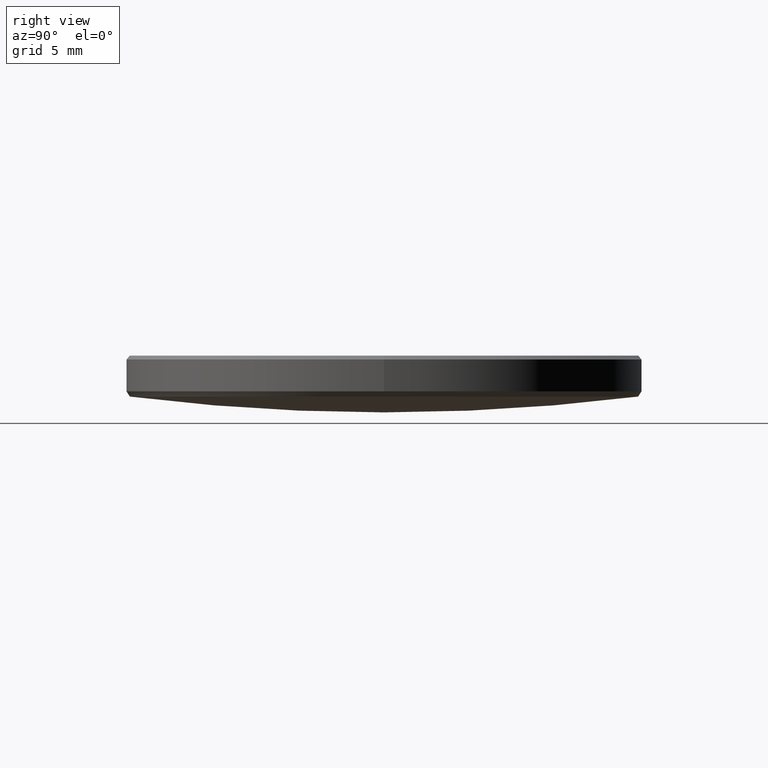
[diagram: clean part render]
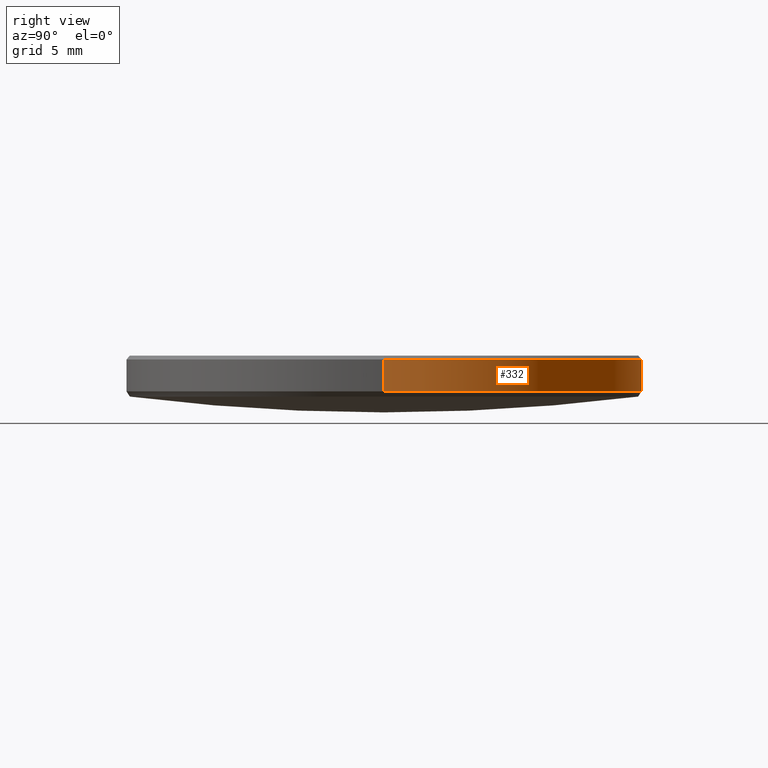
[diagram: same view with one face highlighted and labeled with its STEP entity id]
A machine part, right view. The second image highlights one B-rep face of the part: STEP entity #332.
In plain terms, the highlighted cylindrical surface (partial cylindrical patch) has radius 12.7 mm, axis along (-0, -0, -1).
Its self-contained STEP definition (entity closure, byte-faithful):
#1 = VECTOR ( 'NONE', #92, 1000.000000000000000 ) ;
#14 = FACE_OUTER_BOUND ( 'NONE', #113, .T. ) ;
#18 = EDGE_CURVE ( 'NONE', #253, #30, #66, .T. ) ;
#30 = VERTEX_POINT ( 'NONE', #319 ) ;
#54 = EDGE_CURVE ( 'NONE', #58, #191, #244, .T. ) ;
#58 = VERTEX_POINT ( 'NONE', #100 ) ;
#66 = LINE ( 'NONE', #267, #1 ) ;
#72 = CIRCLE ( 'NONE', #292, 12.69999999999999929 ) ;
#73 = DIRECTION ( 'NONE',  ( -0.000000000000000000, -0.000000000000000000, -1.000000000000000000 ) ) ;
#87 = CARTESIAN_POINT ( 'NONE',  ( -12.69999999999999929, 0.000000000000000000, 4.230902662384877999 ) ) ;
#90 = DIRECTION ( 'NONE',  ( 1.000000000000000000, 0.000000000000000000, 0.000000000000000000 ) ) ;
#92 = DIRECTION ( 'NONE',  ( -0.000000000000000000, -0.000000000000000000, -1.000000000000000000 ) ) ;
#100 = CARTESIAN_POINT ( 'NONE',  ( -12.69999999999999929, 0.000000000000000000, 5.800000000000027356 ) ) ;
#103 = CARTESIAN_POINT ( 'NONE',  ( -12.69999999999999929, 0.000000000000000000, 10.00000000000000000 ) ) ;
#113 = EDGE_LOOP ( 'NONE', ( #263, #159, #230, #317 ) ) ;
#116 = DIRECTION ( 'NONE',  ( -0.000000000000000000, -0.000000000000000000, 1.000000000000000000 ) ) ;
#129 = CIRCLE ( 'NONE', #314, 12.69999999999999929 ) ;
#136 = CARTESIAN_POINT ( 'NONE',  ( 0.000000000000000000, 0.000000000000000000, 4.230902662384877999 ) ) ;
#148 = CARTESIAN_POINT ( 'NONE',  ( 0.000000000000000000, 0.000000000000000000, 10.00000000000000000 ) ) ;
#159 = ORIENTED_EDGE ( 'NONE', *, *, #18, .T. ) ;
#191 = VERTEX_POINT ( 'NONE', #87 ) ;
#196 = DIRECTION ( 'NONE',  ( -0.000000000000000000, -0.000000000000000000, -1.000000000000000000 ) ) ;
#227 = EDGE_CURVE ( 'NONE', #58, #253, #129, .T. ) ;
#230 = ORIENTED_EDGE ( 'NONE', *, *, #280, .T. ) ;
#234 = DIRECTION ( 'NONE',  ( -1.000000000000000000, 0.000000000000000000, 0.000000000000000000 ) ) ;
#237 = CARTESIAN_POINT ( 'NONE',  ( 12.69999999999999929, 1.555301434917138433E-15, 5.800000000000027356 ) ) ;
#244 = LINE ( 'NONE', #103, #283 ) ;
#248 = DIRECTION ( 'NONE',  ( -1.000000000000000000, 0.000000000000000000, 0.000000000000000000 ) ) ;
#253 = VERTEX_POINT ( 'NONE', #237 ) ;
#263 = ORIENTED_EDGE ( 'NONE', *, *, #227, .T. ) ;
#267 = CARTESIAN_POINT ( 'NONE',  ( 12.69999999999999929, 1.555301434917138433E-15, 10.00000000000000000 ) ) ;
#270 = CARTESIAN_POINT ( 'NONE',  ( 0.000000000000000000, 0.000000000000000000, 5.800000000000027356 ) ) ;
#280 = EDGE_CURVE ( 'NONE', #30, #191, #72, .T. ) ;
#283 = VECTOR ( 'NONE', #73, 1000.000000000000000 ) ;
#288 = DIRECTION ( 'NONE',  ( 0.000000000000000000, 0.000000000000000000, -1.000000000000000000 ) ) ;
#292 = AXIS2_PLACEMENT_3D ( 'NONE', #136, #116, #234 ) ;
#307 = AXIS2_PLACEMENT_3D ( 'NONE', #148, #196, #248 ) ;
#314 = AXIS2_PLACEMENT_3D ( 'NONE', #270, #288, #90 ) ;
#317 = ORIENTED_EDGE ( 'NONE', *, *, #54, .F. ) ;
#319 = CARTESIAN_POINT ( 'NONE',  ( 12.69999999999999929, 1.555301434917138433E-15, 4.230902662384877999 ) ) ;
#330 = CYLINDRICAL_SURFACE ( 'NONE', #307, 12.69999999999999929 ) ;
#332 = ADVANCED_FACE ( 'NONE', ( #14 ), #330, .T. ) ;